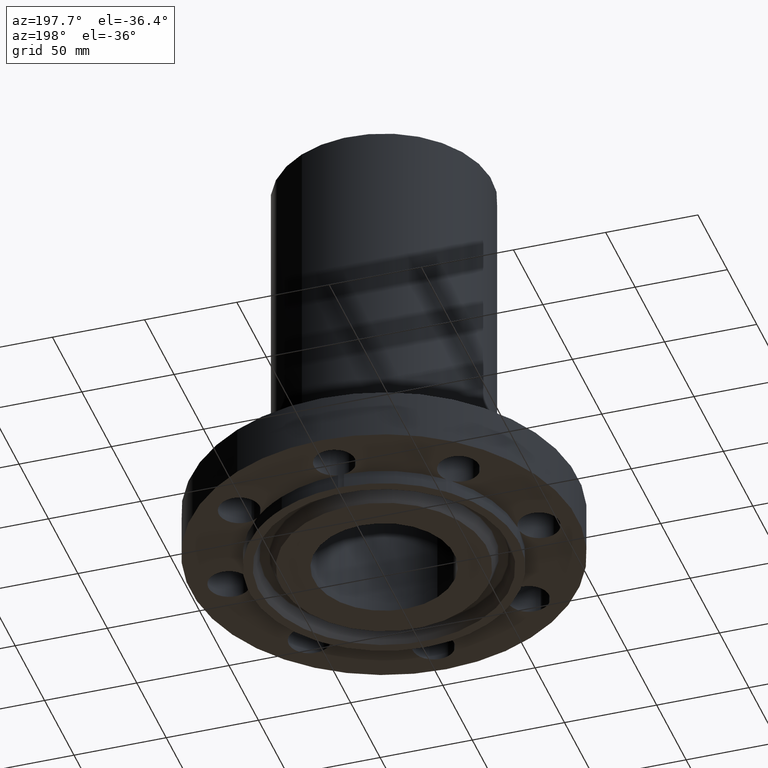
[diagram: clean part render]
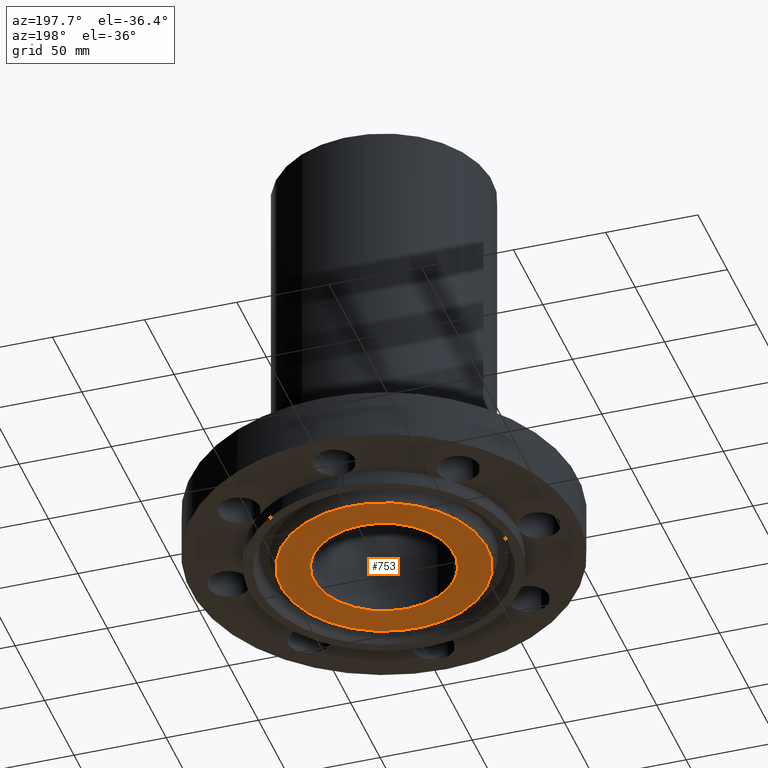
[diagram: same view with one face highlighted and labeled with its STEP entity id]
A machine part, auxiliary view. The second image highlights one B-rep face of the part: STEP entity #753.
In plain terms, the highlighted planar face has unit normal (0, 0, -1).
Its self-contained STEP definition (entity closure, byte-faithful):
#445=AXIS2_PLACEMENT_3D('Plane Axis2P3D',#442,#443,#444) ;
#702=AXIS2_PLACEMENT_3D('Circle Axis2P3D',#700,#701,$) ;
#721=AXIS2_PLACEMENT_3D('Circle Axis2P3D',#719,#720,$) ;
#733=AXIS2_PLACEMENT_3D('Circle Axis2P3D',#731,#732,$) ;
#742=AXIS2_PLACEMENT_3D('Circle Axis2P3D',#740,#741,$) ;
#442=CARTESIAN_POINT('Axis2P3D Location',(0.,1.50000000001,-0.313000000001)) ;
#697=CARTESIAN_POINT('Vertex',(0.719138307909,1.31637384284,-0.313000000001)) ;
#700=CARTESIAN_POINT('Axis2P3D Location',(0.,0.,-0.313000000001)) ;
#704=CARTESIAN_POINT('Vertex',(-0.719138307909,-1.31637384284,-0.313000000001)) ;
#719=CARTESIAN_POINT('Axis2P3D Location',(0.,0.,-0.313000000001)) ;
#731=CARTESIAN_POINT('Axis2P3D Location',(0.,0.,-0.313000000001)) ;
#735=CARTESIAN_POINT('Vertex',(-1.05617446155,-1.93331438385,-0.313000000001)) ;
#737=CARTESIAN_POINT('Vertex',(1.05617446155,1.93331438385,-0.313000000001)) ;
#740=CARTESIAN_POINT('Axis2P3D Location',(0.,0.,-0.313000000001)) ;
#443=DIRECTION('Axis2P3D Direction',(0.,0.,-0.0393700787402)) ;
#444=DIRECTION('Axis2P3D XDirection',(0.0393700787402,0.,0.)) ;
#701=DIRECTION('Axis2P3D Direction',(0.,0.,-0.0393700787402)) ;
#720=DIRECTION('Axis2P3D Direction',(0.,0.,-0.0393700787402)) ;
#732=DIRECTION('Axis2P3D Direction',(0.,0.,-0.0393700787402)) ;
#741=DIRECTION('Axis2P3D Direction',(0.,0.,-0.0393700787402)) ;
#746=ORIENTED_EDGE('',*,*,#739,.T.) ;
#747=ORIENTED_EDGE('',*,*,#744,.T.) ;
#750=ORIENTED_EDGE('',*,*,#706,.F.) ;
#751=ORIENTED_EDGE('',*,*,#723,.F.) ;
#752=FACE_BOUND('',#749,.T.) ;
#753=ADVANCED_FACE('PartBody',(#748,#752),#446,.T.) ;
#703=CIRCLE('generated circle',#702,1.50000000001) ;
#722=CIRCLE('generated circle',#721,1.50000000001) ;
#734=CIRCLE('generated circle',#733,2.20300000001) ;
#743=CIRCLE('generated circle',#742,2.20300000001) ;
#706=EDGE_CURVE('',#698,#705,#703,.T.) ;
#723=EDGE_CURVE('',#705,#698,#722,.T.) ;
#739=EDGE_CURVE('',#736,#738,#734,.T.) ;
#744=EDGE_CURVE('',#738,#736,#743,.T.) ;
#745=EDGE_LOOP('',(#746,#747)) ;
#749=EDGE_LOOP('',(#750,#751)) ;
#748=FACE_OUTER_BOUND('',#745,.T.) ;
#446=PLANE('',#445) ;
#698=VERTEX_POINT('',#697) ;
#705=VERTEX_POINT('',#704) ;
#736=VERTEX_POINT('',#735) ;
#738=VERTEX_POINT('',#737) ;